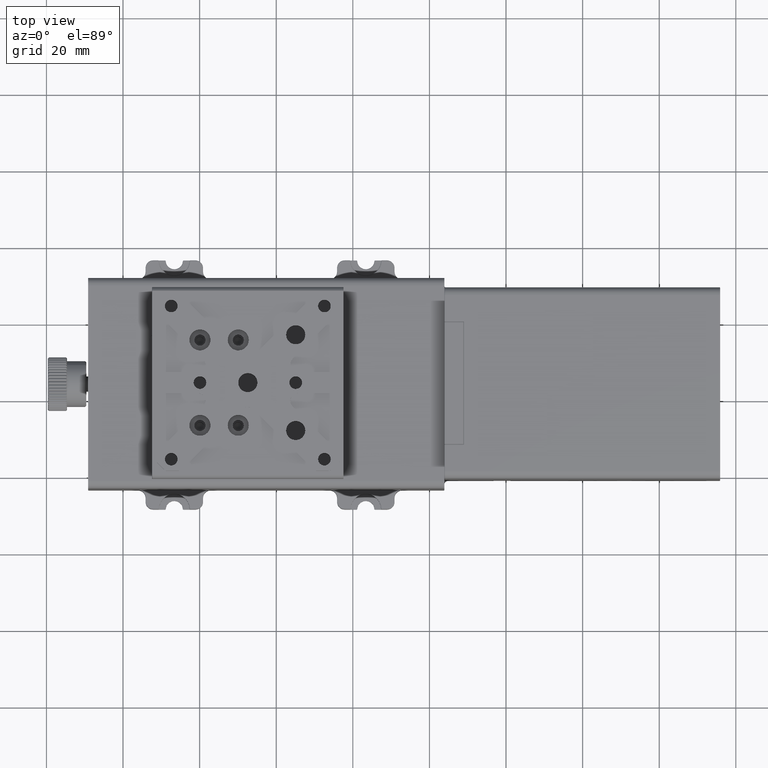
[diagram: clean part render]
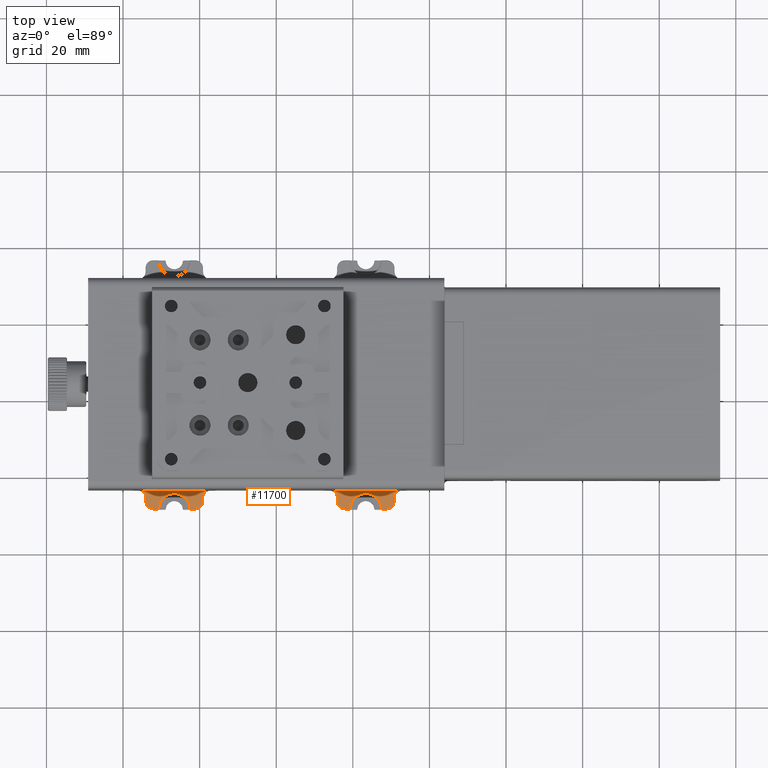
[diagram: same view with one face highlighted and labeled with its STEP entity id]
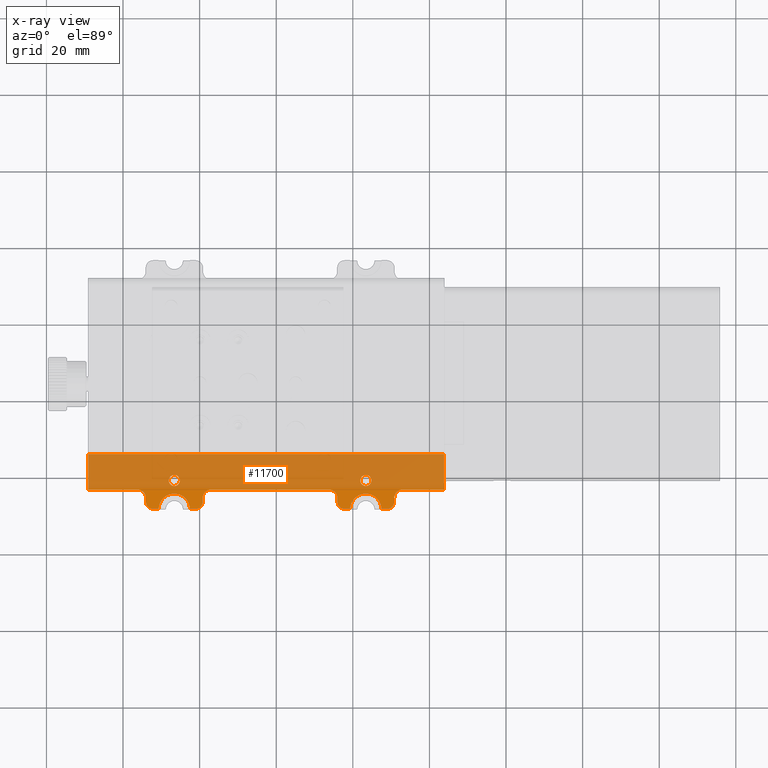
[diagram: x-ray of the same camera — body ghosted, the highlighted face saturated]
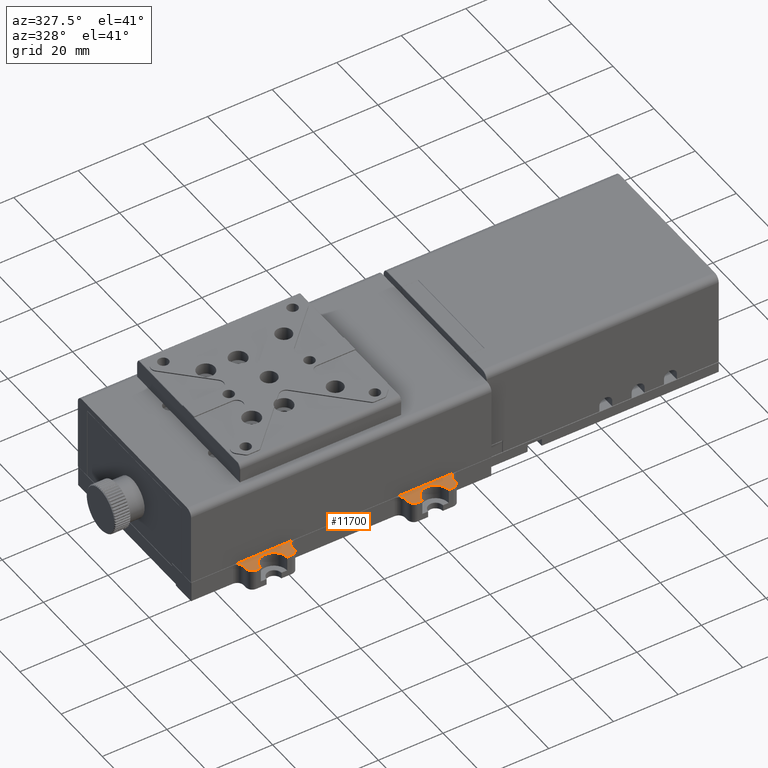
[diagram: same view with one face highlighted and labeled with its STEP entity id]
A machine part, top view. The second image highlights one B-rep face of the part: STEP entity #11700.
The next image is the same camera in x-ray: the body ghosted, the highlighted face saturated — about 87% of this face is hidden behind the body in this view.
A second angle (auxiliary view) of the same face is appended — the face is thin or edge-on in the first view.
In plain terms, the highlighted planar face has unit normal (0, 0, 1).
Its self-contained STEP definition (entity closure, byte-faithful):
#515 = DIRECTION ( 'NONE',  ( 1.000000000000000000, 0.000000000000000000, 0.000000000000000000 ) ) ;
#655 = DIRECTION ( 'NONE',  ( 1.000000000000000000, 0.000000000000000000, 0.000000000000000000 ) ) ;
#1125 = VERTEX_POINT ( 'NONE', #22490 ) ;
#1315 = EDGE_CURVE ( 'NONE', #66861, #14343, #61685, .T. ) ;
#1810 = ORIENTED_EDGE ( 'NONE', *, *, #6893, .F. ) ;
#2081 = AXIS2_PLACEMENT_3D ( 'NONE', #49772, #3970, #61566 ) ;
#2965 = EDGE_CURVE ( 'NONE', #73926, #67087, #4427, .T. ) ;
#3004 = ORIENTED_EDGE ( 'NONE', *, *, #47960, .T. ) ;
#3252 = AXIS2_PLACEMENT_3D ( 'NONE', #60090, #53771, #80250 ) ;
#3442 = CARTESIAN_POINT ( 'NONE',  ( -74.01011235955050438, -6.241573033707870088, 1.500000000000000000 ) ) ;
#3615 = AXIS2_PLACEMENT_3D ( 'NONE', #82971, #27868, #47590 ) ;
#3683 = DIRECTION ( 'NONE',  ( 0.000000000000000000, 0.000000000000000000, -1.000000000000000000 ) ) ;
#3970 = DIRECTION ( 'NONE',  ( 0.000000000000000000, 0.000000000000000000, 1.000000000000000000 ) ) ;
#4427 = CIRCLE ( 'NONE', #51432, 2.100000000000004530 ) ;
#5404 = VERTEX_POINT ( 'NONE', #59209 ) ;
#5673 = CARTESIAN_POINT ( 'NONE',  ( -11.11011235955053955, -8.141573033707889095, 1.500000000000000000 ) ) ;
#5852 = CARTESIAN_POINT ( 'NONE',  ( -9.210112359550549854, -5.241573033707880747, 1.500000000000000000 ) ) ;
#5884 = EDGE_CURVE ( 'NONE', #75470, #34516, #80012, .T. ) ;
#5975 = EDGE_CURVE ( 'NONE', #14343, #52993, #29555, .T. ) ;
#6815 = CARTESIAN_POINT ( 'NONE',  ( 3.789887640449450146, 6.158426966292119609, 1.500000000000000000 ) ) ;
#6893 = EDGE_CURVE ( 'NONE', #81579, #43768, #65681, .T. ) ;
#7019 = CARTESIAN_POINT ( 'NONE',  ( -89.11011235955059817, 6.158426966292110727, 1.500000000000000000 ) ) ;
#7032 = VECTOR ( 'NONE', #12501, 1000.000000000000000 ) ;
#7261 = CARTESIAN_POINT ( 'NONE',  ( -89.11011235955059817, 49.25842696629209883, 1.500000000000000000 ) ) ;
#7434 = LINE ( 'NONE', #41070, #18082 ) ;
#7742 = AXIS2_PLACEMENT_3D ( 'NONE', #46469, #72120, #26313 ) ;
#8006 = VECTOR ( 'NONE', #79389, 1000.000000000000000 ) ;
#8310 = VECTOR ( 'NONE', #35016, 1000.000000000000000 ) ;
#8409 = CARTESIAN_POINT ( 'NONE',  ( -7.110112359550529781, -3.141573033707854901, 1.500000000000000000 ) ) ;
#8420 = EDGE_CURVE ( 'NONE', #42926, #70087, #44361, .T. ) ;
#8544 = CARTESIAN_POINT ( 'NONE',  ( -59.21011235955059959, -6.241573033707870088, 1.500000000000000000 ) ) ;
#10020 = CIRCLE ( 'NONE', #58403, 2.100000000000000977 ) ;
#10251 = DIRECTION ( 'NONE',  ( 0.000000000000000000, 1.000000000000000000, 0.000000000000000000 ) ) ;
#10450 = DIRECTION ( 'NONE',  ( 0.000000000000000000, 0.000000000000000000, -1.000000000000000000 ) ) ;
#10529 = DIRECTION ( 'NONE',  ( 1.000000000000000000, 0.000000000000000000, 0.000000000000000000 ) ) ;
#10922 = DIRECTION ( 'NONE',  ( 0.000000000000000000, 0.000000000000000000, 1.000000000000000000 ) ) ;
#11203 = CARTESIAN_POINT ( 'NONE',  ( -22.11011235955054843, -6.241573033707870088, 1.500000000000000000 ) ) ;
#11439 = VERTEX_POINT ( 'NONE', #29221 ) ;
#11700 = ADVANCED_FACE ( 'NONE', ( #79169, #46798, #34161 ), #72016, .T. ) ;
#11992 = VERTEX_POINT ( 'NONE', #76574 ) ;
#12083 = DIRECTION ( 'NONE',  ( 1.000000000000000000, 0.000000000000000000, 0.000000000000000000 ) ) ;
#12501 = DIRECTION ( 'NONE',  ( -1.000000000000000000, -1.206764157201255812E-16, 0.000000000000000000 ) ) ;
#13198 = EDGE_CURVE ( 'NONE', #24347, #73926, #60922, .T. ) ;
#13480 = DIRECTION ( 'NONE',  ( 0.000000000000000000, 0.000000000000000000, -1.000000000000000000 ) ) ;
#13597 = DIRECTION ( 'NONE',  ( 0.000000000000000000, 0.000000000000000000, 1.000000000000000000 ) ) ;
#13897 = ORIENTED_EDGE ( 'NONE', *, *, #67278, .T. ) ;
#14343 = VERTEX_POINT ( 'NONE', #8409 ) ;
#14487 = ORIENTED_EDGE ( 'NONE', *, *, #60942, .T. ) ;
#15560 = EDGE_CURVE ( 'NONE', #55148, #49976, #58697, .T. ) ;
#16254 = ORIENTED_EDGE ( 'NONE', *, *, #47889, .T. ) ;
#16557 = CARTESIAN_POINT ( 'NONE',  ( 3.789887640449450146, 6.158426966292119609, 1.500000000000000000 ) ) ;
#17135 = ORIENTED_EDGE ( 'NONE', *, *, #18740, .F. ) ;
#17181 = CARTESIAN_POINT ( 'NONE',  ( -26.11011235955054843, -5.241573033707880747, 1.500000000000000000 ) ) ;
#17384 = DIRECTION ( 'NONE',  ( 1.224646799147351975E-16, -1.000000000000000000, 0.000000000000000000 ) ) ;
#18082 = VECTOR ( 'NONE', #17384, 1000.000000000000000 ) ;
#18408 = DIRECTION ( 'NONE',  ( 0.000000000000000000, 0.000000000000000000, 1.000000000000000000 ) ) ;
#18740 = EDGE_CURVE ( 'NONE', #49976, #55148, #31837, .T. ) ;
#18813 = DIRECTION ( 'NONE',  ( 0.000000000000000000, 1.000000000000000000, 0.000000000000000000 ) ) ;
#18877 = ORIENTED_EDGE ( 'NONE', *, *, #29927, .T. ) ;
#19235 = CARTESIAN_POINT ( 'NONE',  ( -22.11011235955054843, -8.141573033707850016, 1.500000000000000000 ) ) ;
#19712 = ORIENTED_EDGE ( 'NONE', *, *, #13198, .T. ) ;
#20422 = LINE ( 'NONE', #58250, #22333 ) ;
#20524 = LINE ( 'NONE', #57236, #25406 ) ;
#21269 = VECTOR ( 'NONE', #27127, 1000.000000000000000 ) ;
#21404 = VECTOR ( 'NONE', #18813, 1000.000000000000000 ) ;
#21809 = CARTESIAN_POINT ( 'NONE',  ( -16.61011235955055199, -0.7415730337078720869, 1.500000000000000000 ) ) ;
#21907 = EDGE_LOOP ( 'NONE', ( #1810, #43706 ) ) ;
#22333 = VECTOR ( 'NONE', #655, 1000.000000000000000 ) ;
#22490 = CARTESIAN_POINT ( 'NONE',  ( -70.70889266593439970, -8.141573033707889095, 1.500000000000000000 ) ) ;
#22579 = CARTESIAN_POINT ( 'NONE',  ( -57.11011235955050580, -3.141573033707854901, 1.500000000000000000 ) ) ;
#24347 = VERTEX_POINT ( 'NONE', #40635 ) ;
#25289 = ORIENTED_EDGE ( 'NONE', *, *, #75445, .T. ) ;
#25327 = EDGE_CURVE ( 'NONE', #44011, #57508, #63372, .T. ) ;
#25396 = VERTEX_POINT ( 'NONE', #19235 ) ;
#25406 = VECTOR ( 'NONE', #71809, 1000.000000000000000 ) ;
#25488 = CARTESIAN_POINT ( 'NONE',  ( -12.51133205316670072, -8.141573033707889095, 1.500000000000000000 ) ) ;
#25780 = VERTEX_POINT ( 'NONE', #5673 ) ;
#26041 = ORIENTED_EDGE ( 'NONE', *, *, #35857, .T. ) ;
#26121 = EDGE_LOOP ( 'NONE', ( #36826, #17135 ) ) ;
#26313 = DIRECTION ( 'NONE',  ( 1.000000000000000000, 0.000000000000000000, 0.000000000000000000 ) ) ;
#27127 = DIRECTION ( 'NONE',  ( 0.000000000000000000, -1.000000000000000000, 0.000000000000000000 ) ) ;
#27479 = AXIS2_PLACEMENT_3D ( 'NONE', #21809, #67211, #72680 ) ;
#27868 = DIRECTION ( 'NONE',  ( 0.000000000000000000, 0.000000000000000000, 1.000000000000000000 ) ) ;
#29105 = EDGE_CURVE ( 'NONE', #34516, #42926, #10020, .T. ) ;
#29221 = CARTESIAN_POINT ( 'NONE',  ( -59.21011235955059959, -5.241573033707880747, 1.500000000000000000 ) ) ;
#29416 = AXIS2_PLACEMENT_3D ( 'NONE', #11203, #75956, #62491 ) ;
#29425 = ORIENTED_EDGE ( 'NONE', *, *, #76376, .T. ) ;
#29555 = LINE ( 'NONE', #55175, #75466 ) ;
#29927 = EDGE_CURVE ( 'NONE', #52993, #44011, #61122, .T. ) ;
#30380 = DIRECTION ( 'NONE',  ( 1.000000000000000000, 0.000000000000000000, 0.000000000000000000 ) ) ;
#30606 = CARTESIAN_POINT ( 'NONE',  ( -59.21011235955059959, -5.241573033707880747, 1.500000000000000000 ) ) ;
#31297 = DIRECTION ( 'NONE',  ( 0.000000000000000000, 1.000000000000000000, 0.000000000000000000 ) ) ;
#31336 = CARTESIAN_POINT ( 'NONE',  ( -89.01011235955050438, 6.158426966292110727, 1.500000000000000000 ) ) ;
#31837 = CIRCLE ( 'NONE', #3615, 1.449999999999993072 ) ;
#32316 = VERTEX_POINT ( 'NONE', #64343 ) ;
#33344 = CARTESIAN_POINT ( 'NONE',  ( -7.110112359550529781, -5.241573033707880747, 1.500000000000000000 ) ) ;
#34112 = CARTESIAN_POINT ( 'NONE',  ( -24.01011235955050083, -5.241573033707880747, 1.500000000000000000 ) ) ;
#34161 = FACE_OUTER_BOUND ( 'NONE', #45452, .T. ) ;
#34516 = VERTEX_POINT ( 'NONE', #78874 ) ;
#34827 = CARTESIAN_POINT ( 'NONE',  ( -89.11011235955059817, -8.141573033707889095, 1.500000000000000000 ) ) ;
#35016 = DIRECTION ( 'NONE',  ( 1.000000000000000000, 0.000000000000000000, 0.000000000000000000 ) ) ;
#35714 = AXIS2_PLACEMENT_3D ( 'NONE', #40719, #41155, #54587 ) ;
#35857 = EDGE_CURVE ( 'NONE', #32316, #66861, #75037, .T. ) ;
#36053 = ORIENTED_EDGE ( 'NONE', *, *, #48712, .T. ) ;
#36142 = AXIS2_PLACEMENT_3D ( 'NONE', #57484, #18408, #12083 ) ;
#36426 = CARTESIAN_POINT ( 'NONE',  ( -24.01011235955055056, -6.241573033707870088, 1.500000000000000000 ) ) ;
#36826 = ORIENTED_EDGE ( 'NONE', *, *, #15560, .F. ) ;
#37092 = AXIS2_PLACEMENT_3D ( 'NONE', #75662, #10922, #10529 ) ;
#37124 = CARTESIAN_POINT ( 'NONE',  ( -15.16011235955054914, -0.7415730337078720869, 1.500000000000000000 ) ) ;
#37595 = EDGE_CURVE ( 'NONE', #25396, #71051, #73194, .T. ) ;
#37909 = EDGE_CURVE ( 'NONE', #43768, #81579, #42228, .T. ) ;
#39011 = EDGE_CURVE ( 'NONE', #80643, #78633, #47704, .T. ) ;
#39224 = DIRECTION ( 'NONE',  ( 1.000000000000000000, 0.000000000000000000, 0.000000000000000000 ) ) ;
#39792 = CARTESIAN_POINT ( 'NONE',  ( -76.11011235955059817, -3.141573033707854901, 1.500000000000000000 ) ) ;
#39811 = EDGE_CURVE ( 'NONE', #53039, #25780, #20422, .T. ) ;
#39943 = ORIENTED_EDGE ( 'NONE', *, *, #39811, .T. ) ;
#40571 = ORIENTED_EDGE ( 'NONE', *, *, #5975, .T. ) ;
#40635 = CARTESIAN_POINT ( 'NONE',  ( -89.01011235955050438, -3.141573033707885099, 1.500000000000000000 ) ) ;
#40719 = CARTESIAN_POINT ( 'NONE',  ( -57.11011235955050580, -5.241573033707880747, 1.500000000000000000 ) ) ;
#41070 = CARTESIAN_POINT ( 'NONE',  ( -89.01011235955050438, -3.241573033707875418, 1.500000000000000000 ) ) ;
#41155 = DIRECTION ( 'NONE',  ( 0.000000000000000000, 0.000000000000000000, -1.000000000000000000 ) ) ;
#41265 = VECTOR ( 'NONE', #48333, 1000.000000000000000 ) ;
#41596 = VERTEX_POINT ( 'NONE', #8544 ) ;
#42228 = CIRCLE ( 'NONE', #27479, 1.449999999999999956 ) ;
#42404 = DIRECTION ( 'NONE',  ( 1.000000000000000000, 0.000000000000000000, 0.000000000000000000 ) ) ;
#42926 = VERTEX_POINT ( 'NONE', #34112 ) ;
#43706 = ORIENTED_EDGE ( 'NONE', *, *, #37909, .F. ) ;
#43768 = VERTEX_POINT ( 'NONE', #37124 ) ;
#44011 = VERTEX_POINT ( 'NONE', #6815 ) ;
#44233 = ORIENTED_EDGE ( 'NONE', *, *, #25327, .T. ) ;
#44361 = LINE ( 'NONE', #69992, #70101 ) ;
#44720 = CARTESIAN_POINT ( 'NONE',  ( -18.06011235955055128, -0.7415730337078720869, 1.500000000000000000 ) ) ;
#45452 = EDGE_LOOP ( 'NONE', ( #40571, #18877, #44233, #25289, #19712, #64325, #3004, #72370, #63575, #29425, #36053, #16254, #13897, #56528, #74688, #55418, #68714, #66930, #55066, #53545, #39943, #14487, #26041, #76904 ) ) ;
#45455 = DIRECTION ( 'NONE',  ( 1.000000000000000000, 0.000000000000000000, 0.000000000000000000 ) ) ;
#45552 = DIRECTION ( 'NONE',  ( 0.000000000000000000, 0.000000000000000000, 1.000000000000000000 ) ) ;
#46469 = CARTESIAN_POINT ( 'NONE',  ( -61.11011235955049870, -6.241573033707870088, 1.500000000000000000 ) ) ;
#46798 = FACE_BOUND ( 'NONE', #21907, .T. ) ;
#47590 = DIRECTION ( 'NONE',  ( 1.000000000000000000, 0.000000000000000000, 0.000000000000000000 ) ) ;
#47704 = CIRCLE ( 'NONE', #2081, 1.899999999999999023 ) ;
#47846 = CIRCLE ( 'NONE', #37092, 1.900000000000000577 ) ;
#47889 = EDGE_CURVE ( 'NONE', #5404, #41596, #80249, .T. ) ;
#47960 = EDGE_CURVE ( 'NONE', #67087, #80643, #71278, .T. ) ;
#48333 = DIRECTION ( 'NONE',  ( 1.000000000000000000, 0.000000000000000000, 0.000000000000000000 ) ) ;
#48712 = EDGE_CURVE ( 'NONE', #11992, #5404, #20524, .T. ) ;
#48991 = EDGE_CURVE ( 'NONE', #70087, #25396, #83123, .T. ) ;
#49126 = CARTESIAN_POINT ( 'NONE',  ( -65.16011235955060954, -0.7415730337078720869, 1.500000000000000000 ) ) ;
#49772 = CARTESIAN_POINT ( 'NONE',  ( -72.11011235955049870, -6.241573033707870088, 1.500000000000000000 ) ) ;
#49976 = VERTEX_POINT ( 'NONE', #49126 ) ;
#51157 = LINE ( 'NONE', #30606, #21404 ) ;
#51432 = AXIS2_PLACEMENT_3D ( 'NONE', #76972, #13480, #45455 ) ;
#52272 = DIRECTION ( 'NONE',  ( 1.000000000000000000, 0.000000000000000000, 0.000000000000000000 ) ) ;
#52895 = VECTOR ( 'NONE', #31297, 1000.000000000000000 ) ;
#52993 = VERTEX_POINT ( 'NONE', #78005 ) ;
#53039 = VERTEX_POINT ( 'NONE', #25488 ) ;
#53545 = ORIENTED_EDGE ( 'NONE', *, *, #75179, .T. ) ;
#53746 = LINE ( 'NONE', #34827, #8006 ) ;
#53759 = CARTESIAN_POINT ( 'NONE',  ( -72.11011235955049870, -8.141573033707889095, 1.500000000000000000 ) ) ;
#53771 = DIRECTION ( 'NONE',  ( 0.000000000000000000, 0.000000000000000000, -1.000000000000000000 ) ) ;
#54263 = CIRCLE ( 'NONE', #3252, 4.099999999999999645 ) ;
#54587 = DIRECTION ( 'NONE',  ( 1.000000000000000000, 0.000000000000000000, 0.000000000000000000 ) ) ;
#54639 = CARTESIAN_POINT ( 'NONE',  ( -89.11011235955059817, -3.141573033707885099, 1.500000000000000000 ) ) ;
#55066 = ORIENTED_EDGE ( 'NONE', *, *, #37595, .T. ) ;
#55148 = VERTEX_POINT ( 'NONE', #76336 ) ;
#55175 = CARTESIAN_POINT ( 'NONE',  ( -89.11011235955059817, -3.141573033707885099, 1.500000000000000000 ) ) ;
#55418 = ORIENTED_EDGE ( 'NONE', *, *, #29105, .T. ) ;
#56528 = ORIENTED_EDGE ( 'NONE', *, *, #78700, .T. ) ;
#56963 = DIRECTION ( 'NONE',  ( 0.000000000000000000, -1.000000000000000000, 0.000000000000000000 ) ) ;
#57236 = CARTESIAN_POINT ( 'NONE',  ( -89.11011235955059817, -8.141573033707889095, 1.500000000000000000 ) ) ;
#57317 = DIRECTION ( 'NONE',  ( 0.000000000000000000, 0.000000000000000000, -1.000000000000000000 ) ) ;
#57484 = CARTESIAN_POINT ( 'NONE',  ( -16.61011235955055199, -0.7415730337078720869, 1.500000000000000000 ) ) ;
#57508 = VERTEX_POINT ( 'NONE', #31336 ) ;
#58250 = CARTESIAN_POINT ( 'NONE',  ( -89.11011235955059817, -8.141573033707889095, 1.500000000000000000 ) ) ;
#58403 = AXIS2_PLACEMENT_3D ( 'NONE', #17181, #10450, #42404 ) ;
#58538 = VECTOR ( 'NONE', #10251, 1000.000000000000000 ) ;
#58697 = CIRCLE ( 'NONE', #78806, 1.449999999999993072 ) ;
#59209 = CARTESIAN_POINT ( 'NONE',  ( -61.11011235955049870, -8.141573033707889095, 1.500000000000000000 ) ) ;
#60090 = CARTESIAN_POINT ( 'NONE',  ( -16.61011235955055199, -8.241573033707870977, 1.500000000000000000 ) ) ;
#60922 = LINE ( 'NONE', #54639, #41265 ) ;
#60942 = EDGE_CURVE ( 'NONE', #25780, #32316, #47846, .T. ) ;
#60947 = VECTOR ( 'NONE', #61400, 1000.000000000000000 ) ;
#61122 = LINE ( 'NONE', #16557, #58538 ) ;
#61400 = DIRECTION ( 'NONE',  ( 1.000000000000000000, 0.000000000000000000, 0.000000000000000000 ) ) ;
#61566 = DIRECTION ( 'NONE',  ( 1.000000000000000000, 0.000000000000000000, 0.000000000000000000 ) ) ;
#61683 = CARTESIAN_POINT ( 'NONE',  ( -20.70889266593434996, -8.141573033707889095, 1.500000000000000000 ) ) ;
#61685 = CIRCLE ( 'NONE', #65723, 2.099999999999999645 ) ;
#62491 = DIRECTION ( 'NONE',  ( 1.000000000000000000, 0.000000000000000000, 0.000000000000000000 ) ) ;
#63234 = CARTESIAN_POINT ( 'NONE',  ( -9.210112359550549854, -5.241573033707880747, 1.500000000000000000 ) ) ;
#63372 = LINE ( 'NONE', #7019, #7032 ) ;
#63575 = ORIENTED_EDGE ( 'NONE', *, *, #65971, .T. ) ;
#64325 = ORIENTED_EDGE ( 'NONE', *, *, #2965, .T. ) ;
#64343 = CARTESIAN_POINT ( 'NONE',  ( -9.210112359550549854, -6.241573033707870088, 1.500000000000000000 ) ) ;
#65681 = CIRCLE ( 'NONE', #36142, 1.449999999999999956 ) ;
#65723 = AXIS2_PLACEMENT_3D ( 'NONE', #33344, #57317, #515 ) ;
#65971 = EDGE_CURVE ( 'NONE', #78633, #1125, #53746, .T. ) ;
#66054 = CARTESIAN_POINT ( 'NONE',  ( -89.11011235955059817, -8.141573033707889095, 1.500000000000000000 ) ) ;
#66144 = CARTESIAN_POINT ( 'NONE',  ( -89.11011235955059817, -3.141573033707885099, 1.500000000000000000 ) ) ;
#66332 = CIRCLE ( 'NONE', #69017, 4.100000000000006750 ) ;
#66861 = VERTEX_POINT ( 'NONE', #5852 ) ;
#66930 = ORIENTED_EDGE ( 'NONE', *, *, #48991, .T. ) ;
#67087 = VERTEX_POINT ( 'NONE', #78575 ) ;
#67211 = DIRECTION ( 'NONE',  ( 0.000000000000000000, 0.000000000000000000, 1.000000000000000000 ) ) ;
#67278 = EDGE_CURVE ( 'NONE', #41596, #11439, #51157, .T. ) ;
#68714 = ORIENTED_EDGE ( 'NONE', *, *, #8420, .T. ) ;
#69017 = AXIS2_PLACEMENT_3D ( 'NONE', #77773, #3683, #74295 ) ;
#69992 = CARTESIAN_POINT ( 'NONE',  ( -24.01011235955055056, -6.241573033707870088, 1.500000000000000000 ) ) ;
#70087 = VERTEX_POINT ( 'NONE', #36426 ) ;
#70101 = VECTOR ( 'NONE', #56963, 1000.000000000000000 ) ;
#71051 = VERTEX_POINT ( 'NONE', #61683 ) ;
#71198 = CARTESIAN_POINT ( 'NONE',  ( -66.61011235955059817, -0.7415730337078720869, 1.500000000000000000 ) ) ;
#71278 = LINE ( 'NONE', #76750, #21269 ) ;
#71809 = DIRECTION ( 'NONE',  ( 1.000000000000000000, 0.000000000000000000, 0.000000000000000000 ) ) ;
#71969 = CIRCLE ( 'NONE', #35714, 2.099999999999997868 ) ;
#72016 = PLANE ( 'NONE',  #73450 ) ;
#72120 = DIRECTION ( 'NONE',  ( 0.000000000000000000, 0.000000000000000000, 1.000000000000000000 ) ) ;
#72370 = ORIENTED_EDGE ( 'NONE', *, *, #39011, .T. ) ;
#72680 = DIRECTION ( 'NONE',  ( 1.000000000000000000, 0.000000000000000000, 0.000000000000000000 ) ) ;
#73194 = LINE ( 'NONE', #66054, #60947 ) ;
#73450 = AXIS2_PLACEMENT_3D ( 'NONE', #7261, #45552, #52272 ) ;
#73926 = VERTEX_POINT ( 'NONE', #39792 ) ;
#74295 = DIRECTION ( 'NONE',  ( 1.000000000000000000, 0.000000000000000000, 0.000000000000000000 ) ) ;
#74688 = ORIENTED_EDGE ( 'NONE', *, *, #5884, .T. ) ;
#75037 = LINE ( 'NONE', #63234, #52895 ) ;
#75179 = EDGE_CURVE ( 'NONE', #71051, #53039, #54263, .T. ) ;
#75445 = EDGE_CURVE ( 'NONE', #57508, #24347, #7434, .T. ) ;
#75466 = VECTOR ( 'NONE', #30380, 1000.000000000000000 ) ;
#75470 = VERTEX_POINT ( 'NONE', #22579 ) ;
#75662 = CARTESIAN_POINT ( 'NONE',  ( -11.11011235955053955, -6.241573033707870088, 1.500000000000000000 ) ) ;
#75956 = DIRECTION ( 'NONE',  ( 0.000000000000000000, 0.000000000000000000, 1.000000000000000000 ) ) ;
#76336 = CARTESIAN_POINT ( 'NONE',  ( -68.06011235955060101, -0.7415730337078720869, 1.500000000000000000 ) ) ;
#76376 = EDGE_CURVE ( 'NONE', #1125, #11992, #66332, .T. ) ;
#76574 = CARTESIAN_POINT ( 'NONE',  ( -62.51133205316669716, -8.141573033707889095, 1.500000000000000000 ) ) ;
#76750 = CARTESIAN_POINT ( 'NONE',  ( -74.01011235955060386, -6.241573033707870088, 1.500000000000000000 ) ) ;
#76904 = ORIENTED_EDGE ( 'NONE', *, *, #1315, .T. ) ;
#76972 = CARTESIAN_POINT ( 'NONE',  ( -76.11011235955059817, -5.241573033707880747, 1.500000000000000000 ) ) ;
#77773 = CARTESIAN_POINT ( 'NONE',  ( -66.61011235955049870, -8.241573033707870977, 1.500000000000000000 ) ) ;
#78005 = CARTESIAN_POINT ( 'NONE',  ( 3.789887640449450146, -3.141573033707885099, 1.500000000000000000 ) ) ;
#78575 = CARTESIAN_POINT ( 'NONE',  ( -74.01011235955060386, -5.241573033707880747, 1.500000000000000000 ) ) ;
#78633 = VERTEX_POINT ( 'NONE', #53759 ) ;
#78700 = EDGE_CURVE ( 'NONE', #11439, #75470, #71969, .T. ) ;
#78806 = AXIS2_PLACEMENT_3D ( 'NONE', #71198, #13597, #39224 ) ;
#78874 = CARTESIAN_POINT ( 'NONE',  ( -26.11011235955054843, -3.141573033707885099, 1.500000000000000000 ) ) ;
#79169 = FACE_BOUND ( 'NONE', #26121, .T. ) ;
#79389 = DIRECTION ( 'NONE',  ( 1.000000000000000000, 0.000000000000000000, 0.000000000000000000 ) ) ;
#80012 = LINE ( 'NONE', #66144, #8310 ) ;
#80249 = CIRCLE ( 'NONE', #7742, 1.899999999999999023 ) ;
#80250 = DIRECTION ( 'NONE',  ( 1.000000000000000000, 0.000000000000000000, 0.000000000000000000 ) ) ;
#80643 = VERTEX_POINT ( 'NONE', #3442 ) ;
#81579 = VERTEX_POINT ( 'NONE', #44720 ) ;
#82971 = CARTESIAN_POINT ( 'NONE',  ( -66.61011235955059817, -0.7415730337078720869, 1.500000000000000000 ) ) ;
#83123 = CIRCLE ( 'NONE', #29416, 1.899999999999999023 ) ;